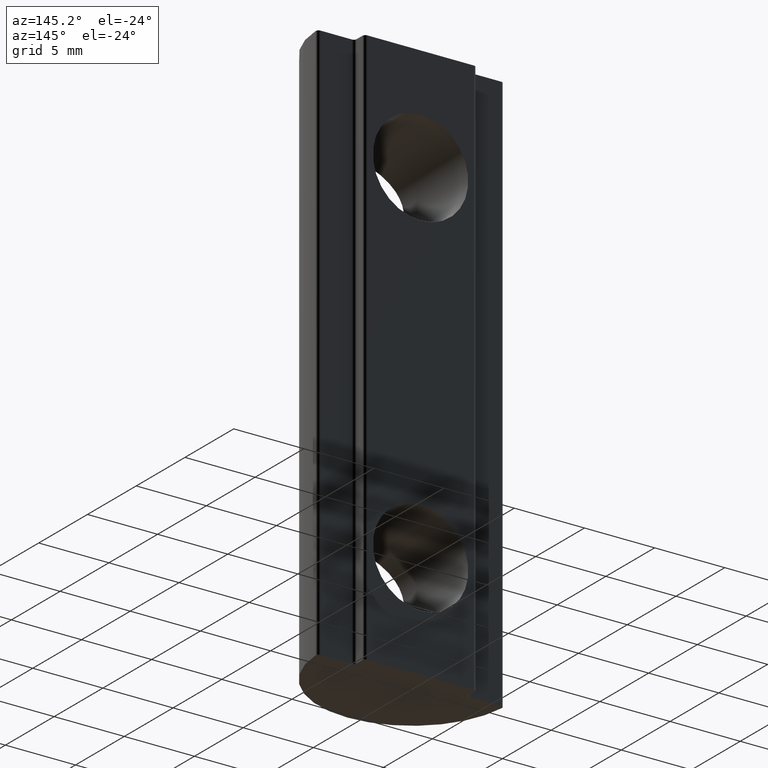
[diagram: clean part render]
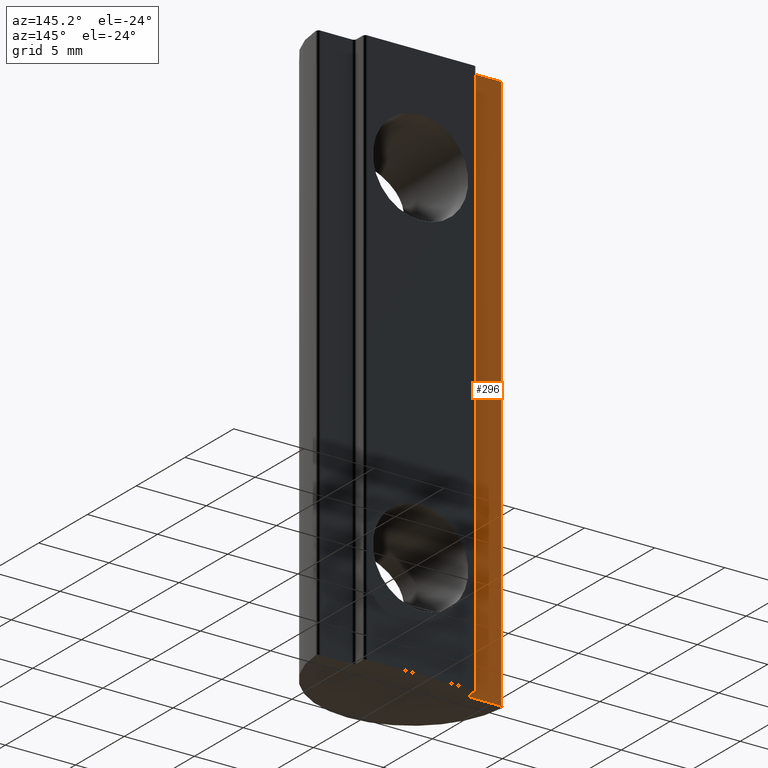
[diagram: same view with one face highlighted and labeled with its STEP entity id]
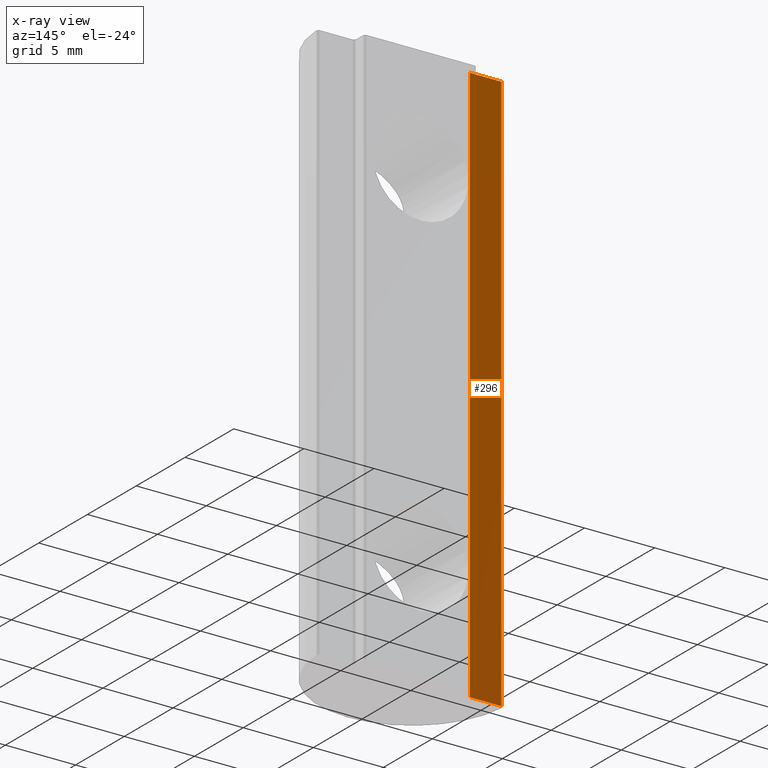
[diagram: x-ray of the same camera — body ghosted, the highlighted face saturated]
A machine part, auxiliary view. The second image highlights one B-rep face of the part: STEP entity #296.
The next image is the same camera in x-ray: the body ghosted, the highlighted face saturated — about 0% of this face is hidden behind the body in this view.
In plain terms, the highlighted planar face has unit normal (0, -1, 0).
Its self-contained STEP definition (entity closure, byte-faithful):
#22=PLANE('',#320);
#25=LINE('',#508,#47);
#44=LINE('',#556,#66);
#45=LINE('',#558,#67);
#46=LINE('',#559,#68);
#47=VECTOR('',#352,40.);
#66=VECTOR('',#389,2.24213593341645);
#67=VECTOR('',#390,40.);
#68=VECTOR('',#391,2.24213593341645);
#99=FACE_OUTER_BOUND('',#121,.T.);
#121=EDGE_LOOP('',(#231,#232,#233,#234));
#135=VERTEX_POINT('',#504);
#137=VERTEX_POINT('',#507);
#157=VERTEX_POINT('',#555);
#158=VERTEX_POINT('',#557);
#164=EDGE_CURVE('',#137,#135,#25,.T.);
#186=EDGE_CURVE('',#157,#135,#44,.T.);
#187=EDGE_CURVE('',#157,#158,#45,.T.);
#188=EDGE_CURVE('',#158,#137,#46,.T.);
#231=ORIENTED_EDGE('',*,*,#186,.F.);
#232=ORIENTED_EDGE('',*,*,#187,.T.);
#233=ORIENTED_EDGE('',*,*,#188,.T.);
#234=ORIENTED_EDGE('',*,*,#164,.T.);
#296=ADVANCED_FACE('',(#99),#22,.F.);
#320=AXIS2_PLACEMENT_3D('',#554,#387,#388);
#352=DIRECTION('',(0.,0.,1.));
#387=DIRECTION('center_axis',(0.,-1.,0.));
#388=DIRECTION('ref_axis',(0.,0.,-1.));
#389=DIRECTION('',(-1.,0.,0.));
#390=DIRECTION('',(0.,0.,-1.));
#391=DIRECTION('',(-1.,0.,0.));
#504=CARTESIAN_POINT('',(-6.44213593341645,0.,40.));
#507=CARTESIAN_POINT('',(-6.44213593341645,0.,0.));
#508=CARTESIAN_POINT('',(-6.44213593341645,0.,40.));
#554=CARTESIAN_POINT('Origin',(-6.65,0.,40.));
#555=CARTESIAN_POINT('',(-4.2,0.,40.));
#556=CARTESIAN_POINT('',(-6.65,0.,40.));
#557=CARTESIAN_POINT('',(-4.2,0.,0.));
#558=CARTESIAN_POINT('',(-4.2,0.,0.));
#559=CARTESIAN_POINT('',(-6.65,0.,0.));